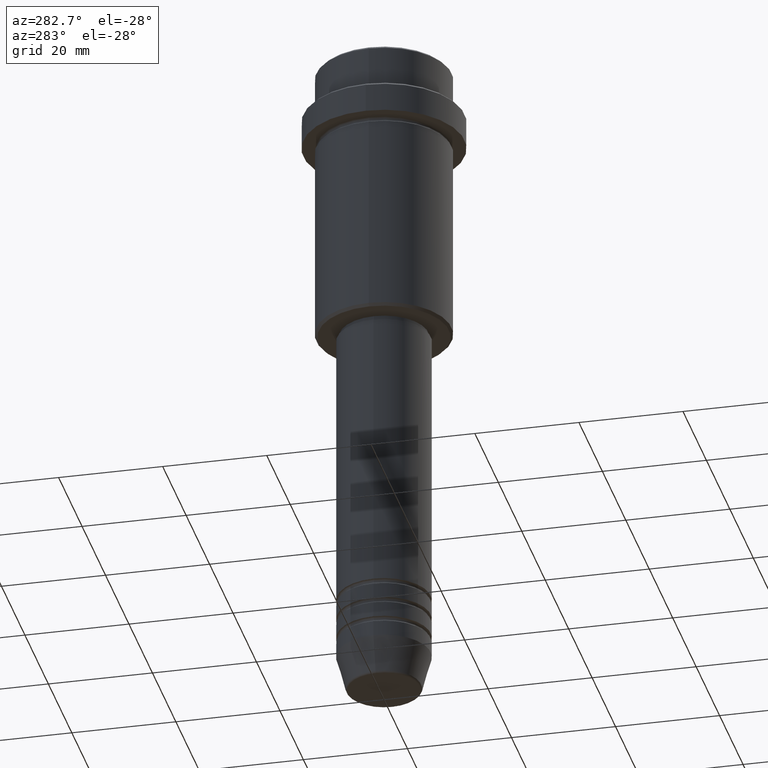
[diagram: clean part render]
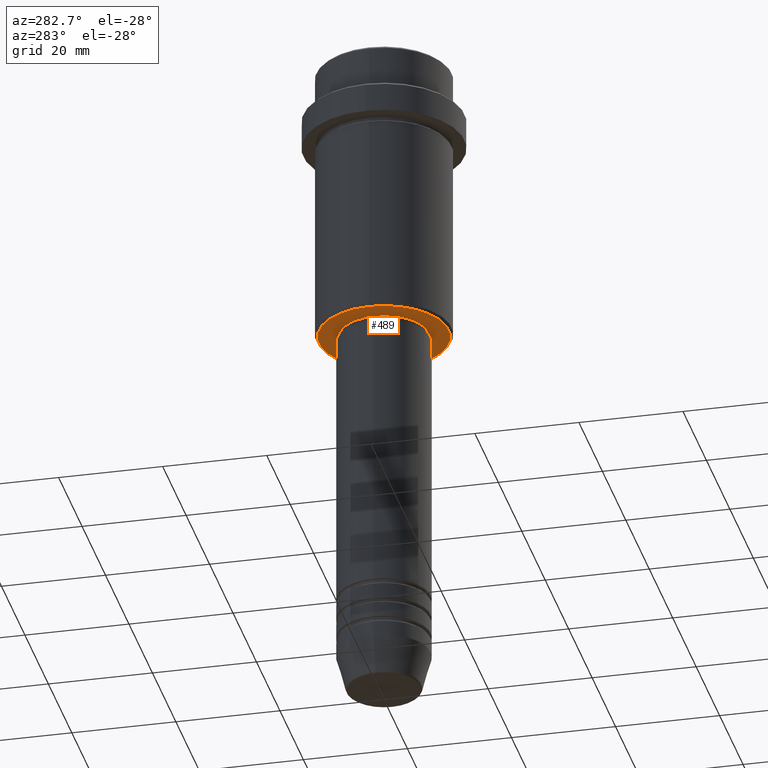
[diagram: same view with one face highlighted and labeled with its STEP entity id]
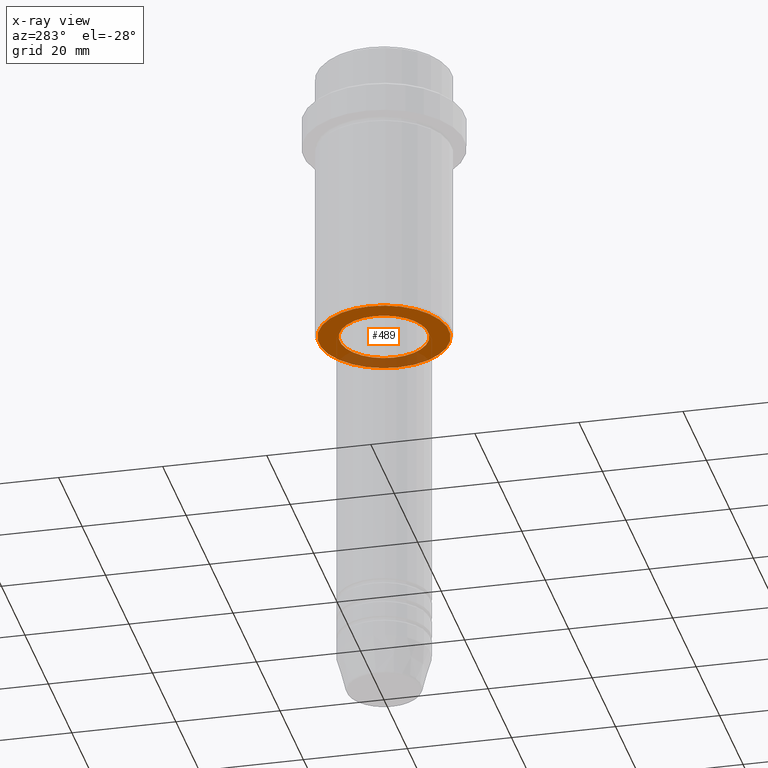
[diagram: x-ray of the same camera — body ghosted, the highlighted face saturated]
A machine part, auxiliary view. The second image highlights one B-rep face of the part: STEP entity #489.
The next image is the same camera in x-ray: the body ghosted, the highlighted face saturated — about 24% of this face is hidden behind the body in this view.
In plain terms, the highlighted planar face has unit normal (0, 0, -1).
Its self-contained STEP definition (entity closure, byte-faithful):
#17 = EDGE_CURVE ( 'NONE', #936, #255, #596, .T. ) ;
#87 = VERTEX_POINT ( 'NONE', #1258 ) ;
#116 = CARTESIAN_POINT ( 'NONE',  ( 0.000000000000000000, 0.000000000000000000, -54.99999999999998579 ) ) ;
#118 = CARTESIAN_POINT ( 'NONE',  ( 0.000000000000000000, 0.000000000000000000, -54.99999999999998579 ) ) ;
#214 = CARTESIAN_POINT ( 'NONE',  ( 8.499999999999994671, 0.000000000000000000, -54.99999999999998579 ) ) ;
#255 = VERTEX_POINT ( 'NONE', #214 ) ;
#275 = DIRECTION ( 'NONE',  ( 0.000000000000000000, 0.000000000000000000, -1.000000000000000000 ) ) ;
#286 = EDGE_LOOP ( 'NONE', ( #351, #890 ) ) ;
#351 = ORIENTED_EDGE ( 'NONE', *, *, #1042, .T. ) ;
#408 = FACE_BOUND ( 'NONE', #286, .T. ) ;
#489 = ADVANCED_FACE ( 'NONE', ( #1159, #408 ), #1286, .T. ) ;
#501 = CARTESIAN_POINT ( 'NONE',  ( 0.000000000000000000, 13.00000000000000000, -54.99999999999999289 ) ) ;
#518 = ORIENTED_EDGE ( 'NONE', *, *, #1242, .T. ) ;
#542 = DIRECTION ( 'NONE',  ( -0.000000000000000000, -0.000000000000000000, 1.000000000000000000 ) ) ;
#545 = DIRECTION ( 'NONE',  ( 1.000000000000000000, 0.000000000000000000, 0.000000000000000000 ) ) ;
#552 = AXIS2_PLACEMENT_3D ( 'NONE', #118, #1306, #545 ) ;
#579 = AXIS2_PLACEMENT_3D ( 'NONE', #663, #1330, #1008 ) ;
#596 = CIRCLE ( 'NONE', #1399, 8.499999999999994671 ) ;
#604 = AXIS2_PLACEMENT_3D ( 'NONE', #811, #275, #1259 ) ;
#607 = ORIENTED_EDGE ( 'NONE', *, *, #1411, .T. ) ;
#663 = CARTESIAN_POINT ( 'NONE',  ( 0.000000000000000000, 0.000000000000000000, -54.99999999999999289 ) ) ;
#691 = CIRCLE ( 'NONE', #579, 12.49999999999996980 ) ;
#739 = CIRCLE ( 'NONE', #552, 8.499999999999994671 ) ;
#771 = DIRECTION ( 'NONE',  ( 1.000000000000000000, 0.000000000000000000, 0.000000000000000000 ) ) ;
#811 = CARTESIAN_POINT ( 'NONE',  ( 0.000000000000000000, 0.000000000000000000, -54.99999999999999289 ) ) ;
#863 = EDGE_LOOP ( 'NONE', ( #518, #607 ) ) ;
#890 = ORIENTED_EDGE ( 'NONE', *, *, #17, .T. ) ;
#936 = VERTEX_POINT ( 'NONE', #1145 ) ;
#1008 = DIRECTION ( 'NONE',  ( -1.000000000000000000, 0.000000000000000000, 0.000000000000000000 ) ) ;
#1012 = AXIS2_PLACEMENT_3D ( 'NONE', #501, #1396, #1290 ) ;
#1039 = CIRCLE ( 'NONE', #604, 12.49999999999996980 ) ;
#1042 = EDGE_CURVE ( 'NONE', #255, #936, #739, .T. ) ;
#1145 = CARTESIAN_POINT ( 'NONE',  ( -8.499999999999994671, 1.040949779275249745E-15, -54.99999999999998579 ) ) ;
#1155 = CARTESIAN_POINT ( 'NONE',  ( -12.49999999999996980, 1.561424668912873336E-15, -54.99999999999999289 ) ) ;
#1159 = FACE_OUTER_BOUND ( 'NONE', #863, .T. ) ;
#1242 = EDGE_CURVE ( 'NONE', #87, #1359, #691, .T. ) ;
#1258 = CARTESIAN_POINT ( 'NONE',  ( 12.49999999999996980, 0.000000000000000000, -54.99999999999999289 ) ) ;
#1259 = DIRECTION ( 'NONE',  ( -1.000000000000000000, 0.000000000000000000, 0.000000000000000000 ) ) ;
#1286 = PLANE ( 'NONE',  #1012 ) ;
#1290 = DIRECTION ( 'NONE',  ( -1.000000000000000000, 0.000000000000000000, -0.000000000000000000 ) ) ;
#1306 = DIRECTION ( 'NONE',  ( -0.000000000000000000, -0.000000000000000000, 1.000000000000000000 ) ) ;
#1330 = DIRECTION ( 'NONE',  ( 0.000000000000000000, 0.000000000000000000, -1.000000000000000000 ) ) ;
#1359 = VERTEX_POINT ( 'NONE', #1155 ) ;
#1396 = DIRECTION ( 'NONE',  ( 0.000000000000000000, 0.000000000000000000, -1.000000000000000000 ) ) ;
#1399 = AXIS2_PLACEMENT_3D ( 'NONE', #116, #542, #771 ) ;
#1411 = EDGE_CURVE ( 'NONE', #1359, #87, #1039, .T. ) ;